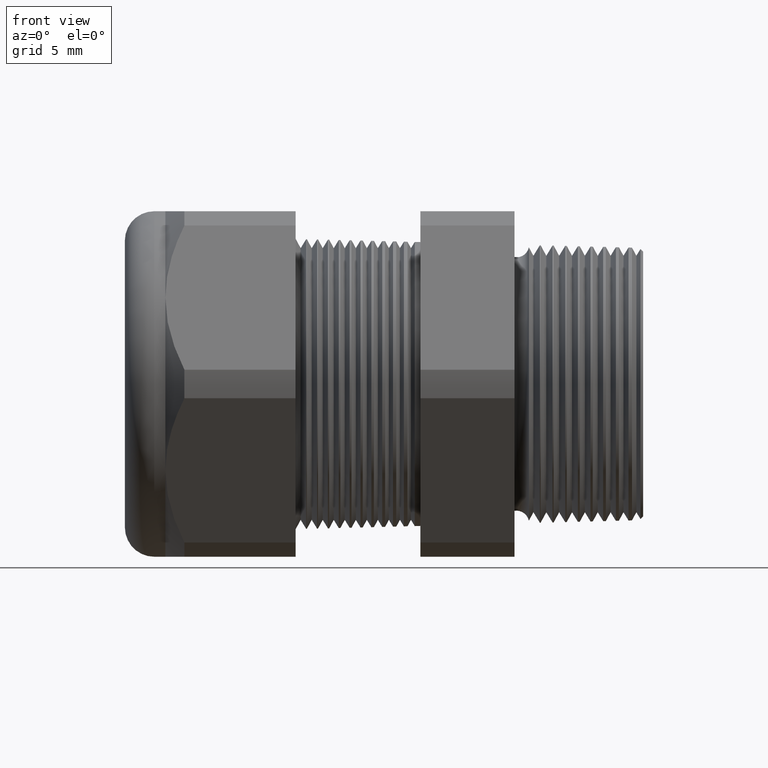
[diagram: clean part render]
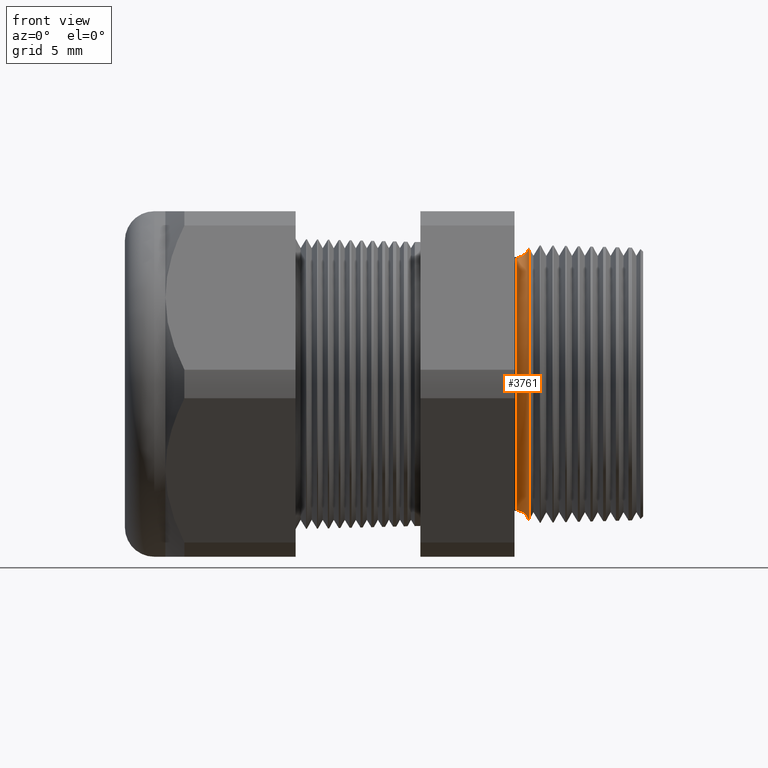
[diagram: same view with one face highlighted and labeled with its STEP entity id]
A machine part, front view. The second image highlights one B-rep face of the part: STEP entity #3761.
In plain terms, the highlighted toroidal blend (fillet) surface has major radius 9.637 mm and minor (blend) radius 0.889 mm.
Its self-contained STEP definition (entity closure, byte-faithful):
#128 = CARTESIAN_POINT ( 'NONE',  ( -0.2708463023710465100, 0.0000000000000000000, 0.3717578769442108600 ) ) ;
#129 = DIRECTION ( 'NONE',  ( 0.0000000000000000000, 1.224646799147352700E-016, 1.000000000000000000 ) ) ;
#130 = DIRECTION ( 'NONE',  ( 0.0000000000000000000, 1.000000000000000000, -1.224646799147353200E-016 ) ) ;
#131 = CARTESIAN_POINT ( 'NONE',  ( -0.3049999999999999400, 4.646408372336645900E-017, 0.3794080363066033600 ) ) ;
#132 = AXIS2_PLACEMENT_3D ( 'NONE', #131, #130, #129 ) ;
#133 = CIRCLE ( 'NONE', #132, 0.03499999999999996900 ) ;
#160 = DIRECTION ( 'NONE',  ( 0.0000000000000000000, 0.0000000000000000000, -1.000000000000000000 ) ) ;
#161 = DIRECTION ( 'NONE',  ( 0.0000000000000000000, -1.000000000000000000, 0.0000000000000000000 ) ) ;
#162 = CARTESIAN_POINT ( 'NONE',  ( -0.3049999999999999400, 0.0000000000000000000, -0.3794080363066033600 ) ) ;
#163 = AXIS2_PLACEMENT_3D ( 'NONE', #162, #161, #160 ) ;
#168 = CIRCLE ( 'NONE', #163, 0.03499999999999996900 ) ;
#175 = CARTESIAN_POINT ( 'NONE',  ( -0.3049999999999999400, 4.217781992635073200E-017, 0.3444080363066033800 ) ) ;
#180 = CARTESIAN_POINT ( 'NONE',  ( -0.3049999999999999400, 0.0000000000000000000, -0.3444080363066033800 ) ) ;
#220 = CARTESIAN_POINT ( 'NONE',  ( -0.2708463023710465100, 4.552720940575434700E-017, -0.3717578769442108600 ) ) ;
#258 = CARTESIAN_POINT ( 'NONE',  ( -0.3049999999999999400, 0.0000000000000000000, 0.0000000000000000000 ) ) ;
#276 = DIRECTION ( 'NONE',  ( 0.0000000000000000000, 0.0000000000000000000, 1.000000000000000000 ) ) ;
#277 = DIRECTION ( 'NONE',  ( 1.000000000000000000, 0.0000000000000000000, 0.0000000000000000000 ) ) ;
#278 = CARTESIAN_POINT ( 'NONE',  ( -0.2708463023710465100, 0.0000000000000000000, 0.0000000000000000000 ) ) ;
#279 = AXIS2_PLACEMENT_3D ( 'NONE', #278, #277, #276 ) ;
#280 = CIRCLE ( 'NONE', #279, 0.3717578769442108600 ) ;
#313 = DIRECTION ( 'NONE',  ( 0.0000000000000000000, 0.0000000000000000000, -1.000000000000000000 ) ) ;
#314 = DIRECTION ( 'NONE',  ( 1.000000000000000000, 0.0000000000000000000, 0.0000000000000000000 ) ) ;
#315 = AXIS2_PLACEMENT_3D ( 'NONE', #258, #314, #313 ) ;
#316 = CIRCLE ( 'NONE', #315, 0.3444080363066033800 ) ;
#1257 = DIRECTION ( 'NONE',  ( 0.0000000000000000000, 0.0000000000000000000, -1.000000000000000000 ) ) ;
#1258 = DIRECTION ( 'NONE',  ( 1.000000000000000000, 0.0000000000000000000, 0.0000000000000000000 ) ) ;
#1259 = AXIS2_PLACEMENT_3D ( 'NONE', #1261, #1258, #1257 ) ;
#1260 = TOROIDAL_SURFACE ( 'NONE', #1259, 0.3794080363066033600, 0.03499999999999994800 ) ;
#1261 = CARTESIAN_POINT ( 'NONE',  ( -0.3049999999999999400, 0.0000000000000000000, 0.0000000000000000000 ) ) ;
#1262 = FACE_OUTER_BOUND ( 'NONE', #3192, .T. ) ;
#3184 = EDGE_CURVE ( 'NONE', #3185, #3202, #133, .T. ) ;
#3185 = VERTEX_POINT ( 'NONE', #128 ) ;
#3192 = EDGE_LOOP ( 'NONE', ( #3265, #3242, #3244, #3254 ) ) ;
#3196 = VERTEX_POINT ( 'NONE', #180 ) ;
#3202 = VERTEX_POINT ( 'NONE', #175 ) ;
#3212 = EDGE_CURVE ( 'NONE', #3215, #3196, #168, .T. ) ;
#3215 = VERTEX_POINT ( 'NONE', #220 ) ;
#3242 = ORIENTED_EDGE ( 'NONE', *, *, #3266, .T. ) ;
#3244 = ORIENTED_EDGE ( 'NONE', *, *, #3212, .F. ) ;
#3252 = EDGE_CURVE ( 'NONE', #3185, #3215, #280, .T. ) ;
#3254 = ORIENTED_EDGE ( 'NONE', *, *, #3252, .F. ) ;
#3265 = ORIENTED_EDGE ( 'NONE', *, *, #3184, .T. ) ;
#3266 = EDGE_CURVE ( 'NONE', #3202, #3196, #316, .T. ) ;
#3761 = ADVANCED_FACE ( 'NONE', ( #1262 ), #1260, .F. ) ;